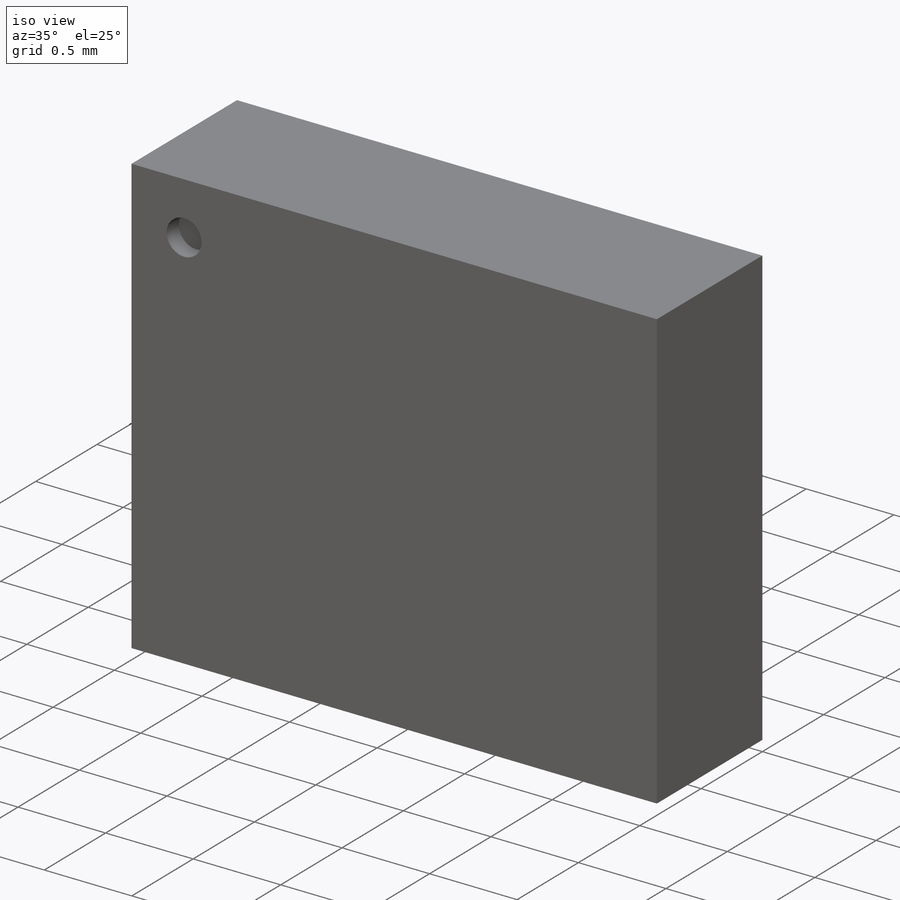
[diagram: iso view]
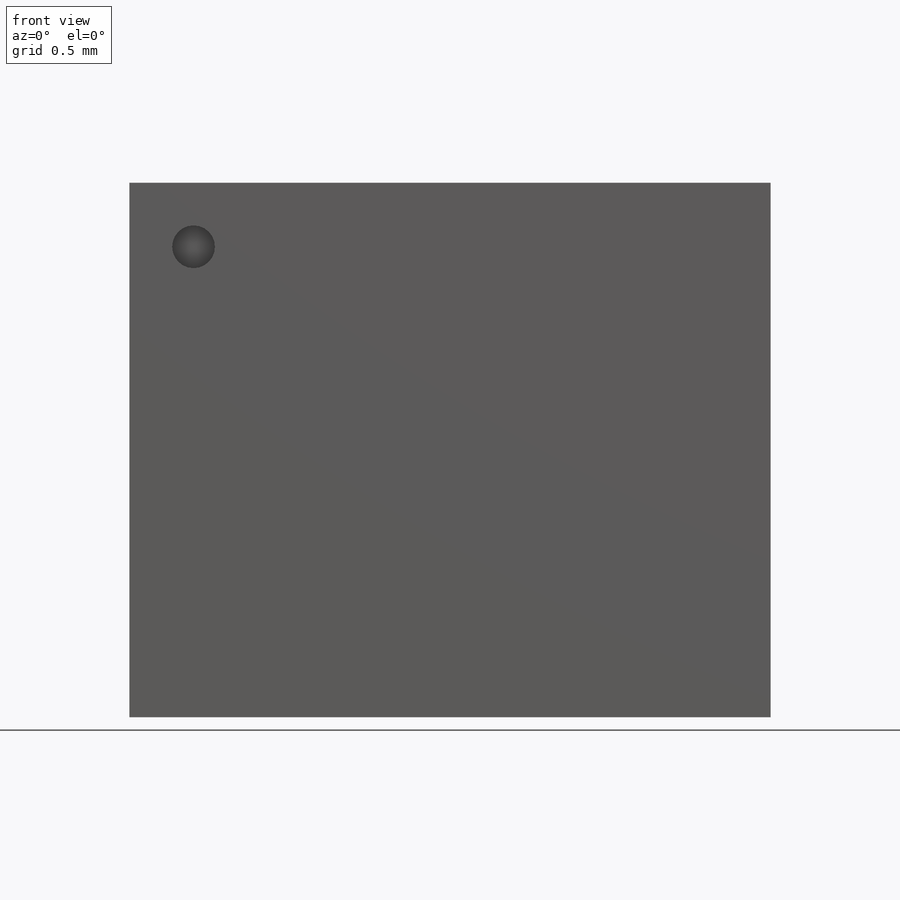
[diagram: front view]
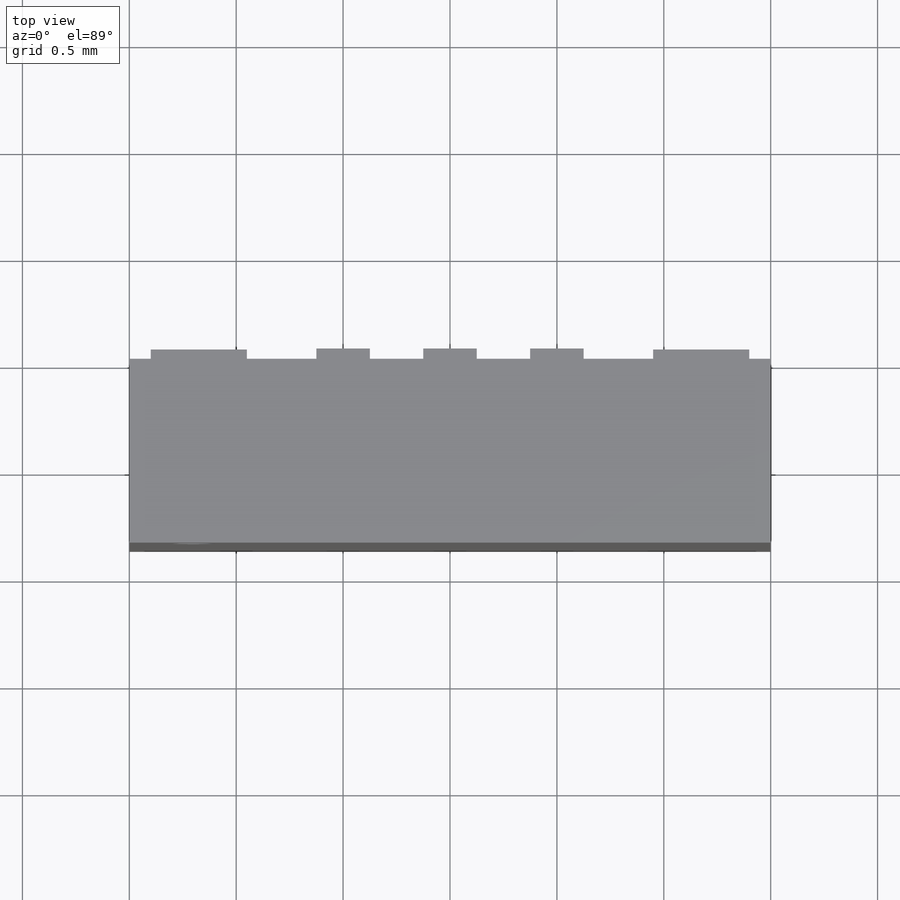
[diagram: top view]
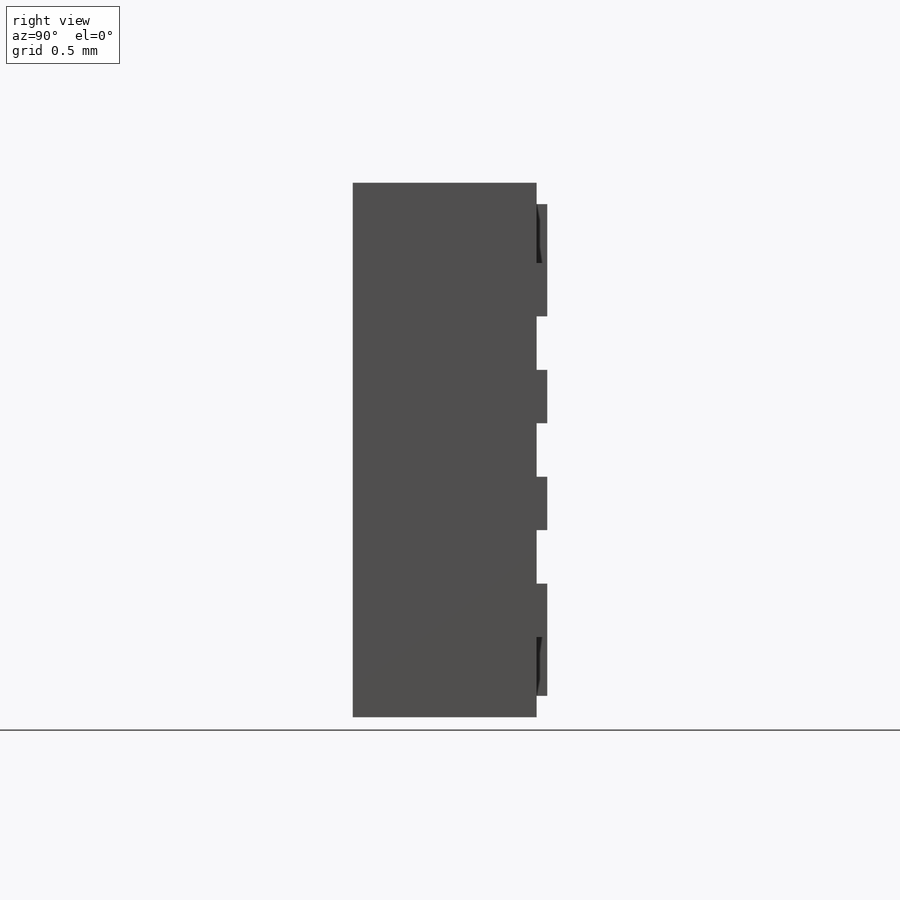
[diagram: right view]
SOLIDWORKS PART (.sldprt)
format: sldprt  version: not decoded by parser v0  size: 218,112 bytes
history: native  units: mm
features: sketch x3, extrude x2, material x1, cut_extrude x1 (+13 scaffold rows collapsed)
feature tree (20):
  scaffold x13  (default folders/planes/origin — collapsed)
  material  "Material <not specified>"
  sketch  "Sketch1"  dims[D1=3.0mm D2=2.5mm]
  extrude  "Boss-Extrude1"  Depth=0.86mm
  sketch  "Sketch2"  dims[D1=0.2mm D2=0.3mm D3=0.3mm]
  cut_extrude  "Cut-Extrude1"  Depth=0.1mm
  sketch  "Sketch3"  dims[D1=0.1mm D2=0.45mm D3=0.25mm D4=0.5mm D6=0.1mm D7=0.45mm D8=0.25mm D9=0.75mm D5=3.0 D10=4.0]
  extrude  "Boss-Extrude2"  Depth=0.05mm
decode coverage: 6 of 6 modeling features carry decoded parameters
note: suppression state not decoded; provenance and decode notes live in map.json
